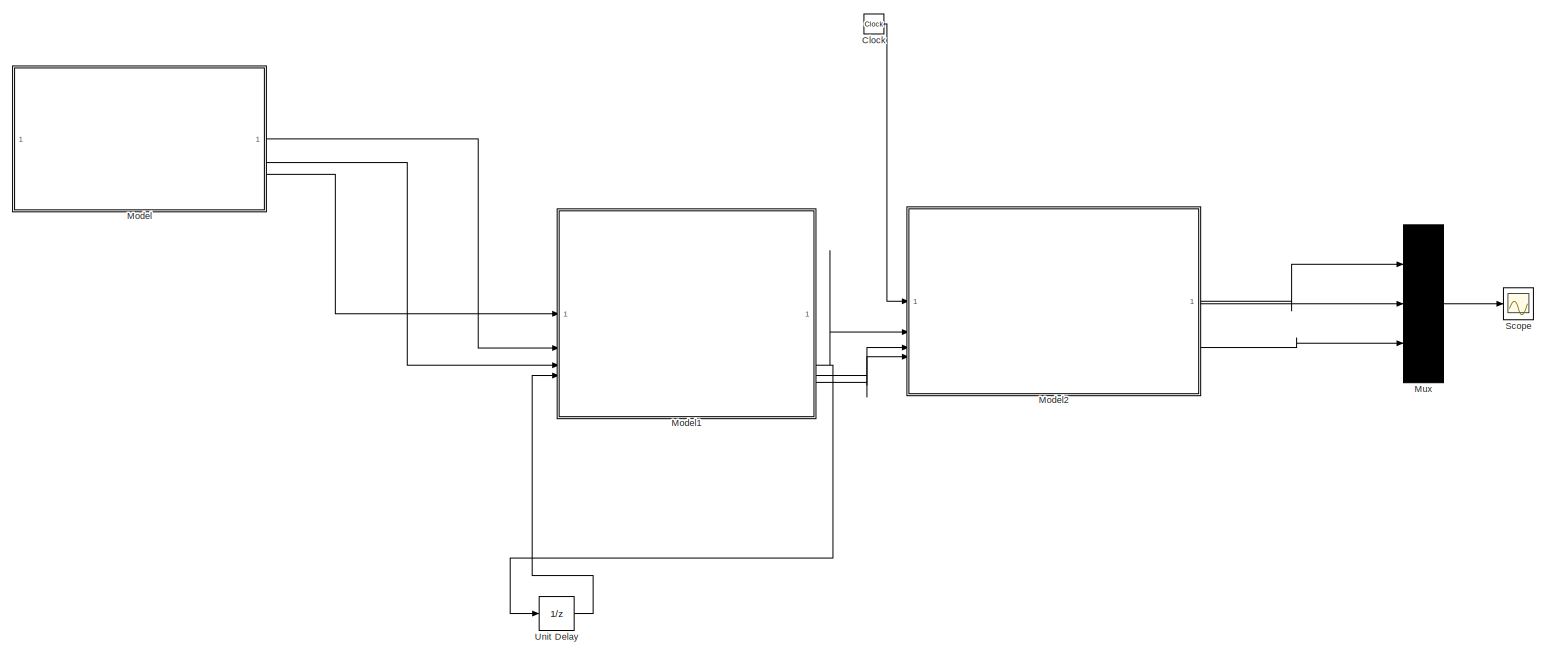
[diagram: root canvas - part 1/1, most of the canvas]
MODEL slx_c6e3ee32a902
KIND model
CONFIG AbsTol = auto
CONFIG EnableMultiTasking = off
CONFIG FixedStep = auto
CONFIG MaxStep = auto
CONFIG MinStep = auto
CONFIG RelTol = 1e-3
CONFIG SampleTimeConstraint = Unconstrained
CONFIG SolverName = VariableStepAuto
CONFIG StartTime = 0.0
CONFIG StopTime = 105
BLOCK [Clock] Clock
  Decimation = 1
BLOCK [ModelReference] Model
  ModelNameDialog = CustomerFunction.slx
  ModelReferenceVersion = 1.2
BLOCK [ModelReference] Model1
  ModelNameDialog = CalcTimes.slx
  ModelReferenceVersion = 1.5
  PortSchema = {"entries":[{"content":{"sides":[{"content":{"connectorIds":["In1","In2","In3","In4"]},"type":"ConnectorPlacement.EquallySpacedRectSide","uuid":"bd8a1737-df0e-49a5-bad8-4c64efca8b50"},{"content":{"connectorIds":["Out1","Out2","Out4","Out5","Out3"],"side":"RIGHT"},"type":"ConnectorPlacement.EquallySpacedRectSide","uuid":"3d321a84-3bf9-406f-acc0-797d5f3bc12f"},{"content":{"side":"TOP"},"type":"Conne...<+268ch>
BLOCK [ModelReference] Model2
  ModelNameDialog = Metrics.slx
  ModelReferenceVersion = 1.9
BLOCK [Mux] Mux
  DisplayOption = bar
  Inputs = 3
BLOCK [Scope] Scope
  Floating = off
  NumInputPorts = 1
  ScopeSpecificationString = Simulink.scopes.TimeScopeBlockCfg('CurrentConfiguration', extmgr.ConfigurationSet(extmgr.Configuration('Core','General UI',true),extmgr.Configuration('Core','Source UI',true),extmgr.Configuration('Sources','WiredSimulink',true),extmgr.Configuration('Visuals','Time Domain',true,'SerializedDisplays',{struct('MinYLimReal','-13.28125','MaxYLimReal','119.53125','YLabelReal','','MinYLimMag','0.00000','M...<+1521ch>
BLOCK [UnitDelay] Unit Delay
  HasFrameUpgradeWarning = on
  SampleTime = -1
LINE Clock:1 -> Model2:1
NET Model1:3 -> Model2:2, Unit Delay:1
LINE Model1:4 -> Model2:3
LINE Model1:5 -> Model2:4
LINE Model2:1 -> Mux:1
LINE Model2:2 -> Mux:2
LINE Model2:3 -> Mux:3
LINE Model:1 -> Model1:2
LINE Model:2 -> Model1:3
LINE Model:3 -> Model1:1
LINE Mux:1 -> Scope:1
LINE Unit Delay:1 -> Model1:4
note: NET lines group one-source signal fan-out (src -> all destinations, sorted); 1:1 wires keep LINE
